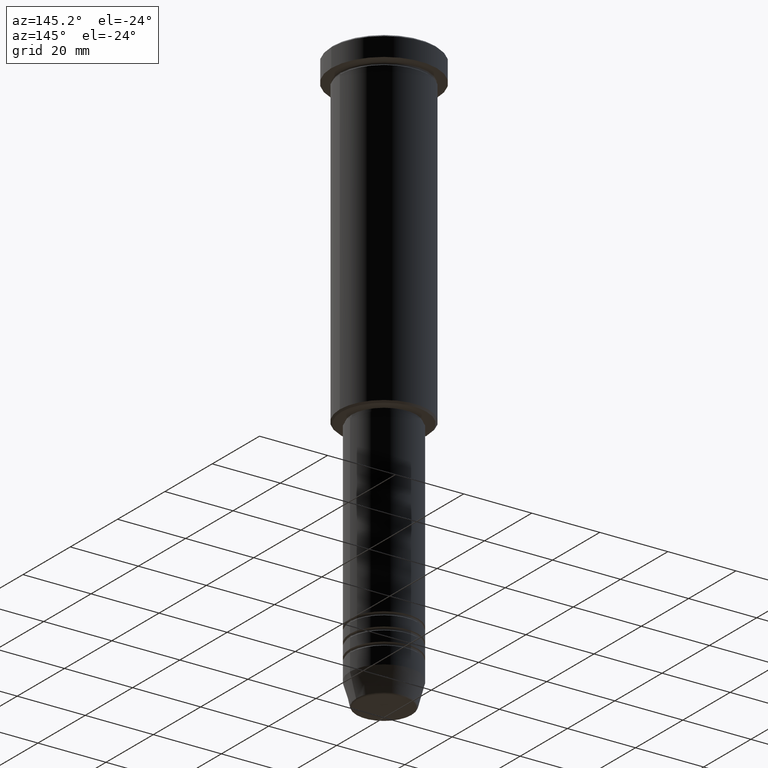
[diagram: clean part render]
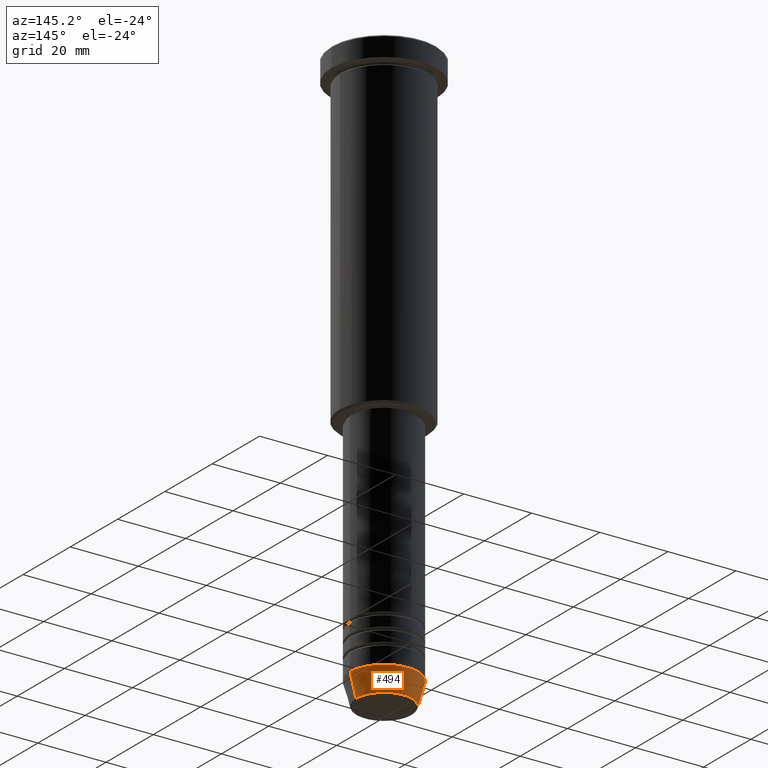
[diagram: same view with one face highlighted and labeled with its STEP entity id]
A machine part, auxiliary view. The second image highlights one B-rep face of the part: STEP entity #494.
In plain terms, the highlighted conical surface has half-angle 15 deg.
Its self-contained STEP definition (entity closure, byte-faithful):
#14 = CIRCLE ( 'NONE', #939, 8.223655072137185940 ) ;
#28 = EDGE_LOOP ( 'NONE', ( #259, #1033, #1006, #672 ) ) ;
#41 = EDGE_CURVE ( 'NONE', #879, #817, #897, .T. ) ;
#59 = CARTESIAN_POINT ( 'NONE',  ( -10.00000000000000000, 1.224646799147353256E-15, -163.9999999999999716 ) ) ;
#105 = CARTESIAN_POINT ( 'NONE',  ( 10.00000000000000000, 0.000000000000000000, -163.9999999999999716 ) ) ;
#129 = DIRECTION ( 'NONE',  ( 1.000000000000000000, 0.000000000000000000, 0.000000000000000000 ) ) ;
#151 = EDGE_CURVE ( 'NONE', #877, #817, #751, .T. ) ;
#154 = VECTOR ( 'NONE', #1102, 1000.000000000000114 ) ;
#194 = CARTESIAN_POINT ( 'NONE',  ( -8.223655072137185940, 1.115877042642911659E-15, -170.6294095225512706 ) ) ;
#196 = AXIS2_PLACEMENT_3D ( 'NONE', #511, #1057, #529 ) ;
#210 = DIRECTION ( 'NONE',  ( 1.000000000000000000, 0.000000000000000000, 0.000000000000000000 ) ) ;
#225 = VERTEX_POINT ( 'NONE', #419 ) ;
#259 = ORIENTED_EDGE ( 'NONE', *, *, #584, .T. ) ;
#280 = DIRECTION ( 'NONE',  ( -0.000000000000000000, -0.000000000000000000, 1.000000000000000000 ) ) ;
#344 = CARTESIAN_POINT ( 'NONE',  ( -10.00000000000000000, 1.224646799147353256E-15, -163.9999999999999716 ) ) ;
#363 = DIRECTION ( 'NONE',  ( -0.2588190451025210725, 3.169619151431769255E-17, 0.9659258262890680902 ) ) ;
#419 = CARTESIAN_POINT ( 'NONE',  ( 8.223655072137185940, 0.000000000000000000, -170.6294095225512706 ) ) ;
#493 = FACE_OUTER_BOUND ( 'NONE', #28, .T. ) ;
#494 = ADVANCED_FACE ( 'NONE', ( #493 ), #1049, .T. ) ;
#511 = CARTESIAN_POINT ( 'NONE',  ( 0.000000000000000000, 0.000000000000000000, -163.9999999999999716 ) ) ;
#527 = DIRECTION ( 'NONE',  ( -0.000000000000000000, -0.000000000000000000, 1.000000000000000000 ) ) ;
#529 = DIRECTION ( 'NONE',  ( 1.000000000000000000, 0.000000000000000000, 0.000000000000000000 ) ) ;
#568 = CARTESIAN_POINT ( 'NONE',  ( 0.000000000000000000, 0.000000000000000000, -163.9999999999999716 ) ) ;
#578 = VECTOR ( 'NONE', #363, 1000.000000000000114 ) ;
#584 = EDGE_CURVE ( 'NONE', #225, #879, #14, .T. ) ;
#663 = LINE ( 'NONE', #105, #154 ) ;
#672 = ORIENTED_EDGE ( 'NONE', *, *, #881, .F. ) ;
#751 = CIRCLE ( 'NONE', #196, 10.00000000000000000 ) ;
#817 = VERTEX_POINT ( 'NONE', #59 ) ;
#874 = CARTESIAN_POINT ( 'NONE',  ( 0.000000000000000000, 0.000000000000000000, -170.6294095225512706 ) ) ;
#877 = VERTEX_POINT ( 'NONE', #1016 ) ;
#879 = VERTEX_POINT ( 'NONE', #194 ) ;
#881 = EDGE_CURVE ( 'NONE', #225, #877, #663, .T. ) ;
#897 = LINE ( 'NONE', #344, #578 ) ;
#939 = AXIS2_PLACEMENT_3D ( 'NONE', #874, #527, #129 ) ;
#1006 = ORIENTED_EDGE ( 'NONE', *, *, #151, .F. ) ;
#1016 = CARTESIAN_POINT ( 'NONE',  ( 10.00000000000000000, 0.000000000000000000, -163.9999999999999716 ) ) ;
#1033 = ORIENTED_EDGE ( 'NONE', *, *, #41, .T. ) ;
#1049 = CONICAL_SURFACE ( 'NONE', #1069, 10.00000000000000000, 0.2617993877991497964 ) ;
#1057 = DIRECTION ( 'NONE',  ( -0.000000000000000000, -0.000000000000000000, 1.000000000000000000 ) ) ;
#1069 = AXIS2_PLACEMENT_3D ( 'NONE', #568, #280, #210 ) ;
#1102 = DIRECTION ( 'NONE',  ( 0.2588190451025210725, 0.000000000000000000, 0.9659258262890680902 ) ) ;